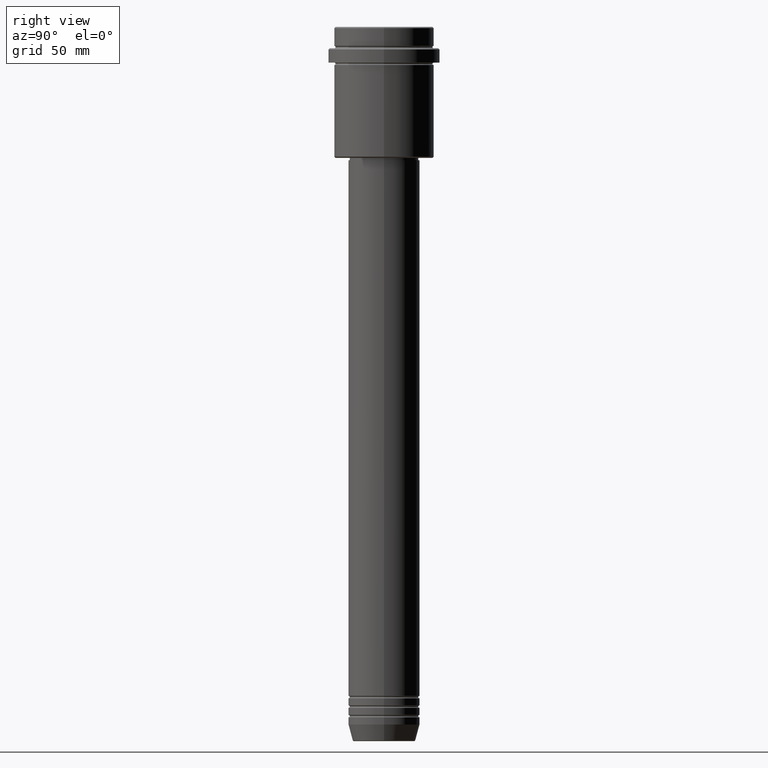
[diagram: clean part render]
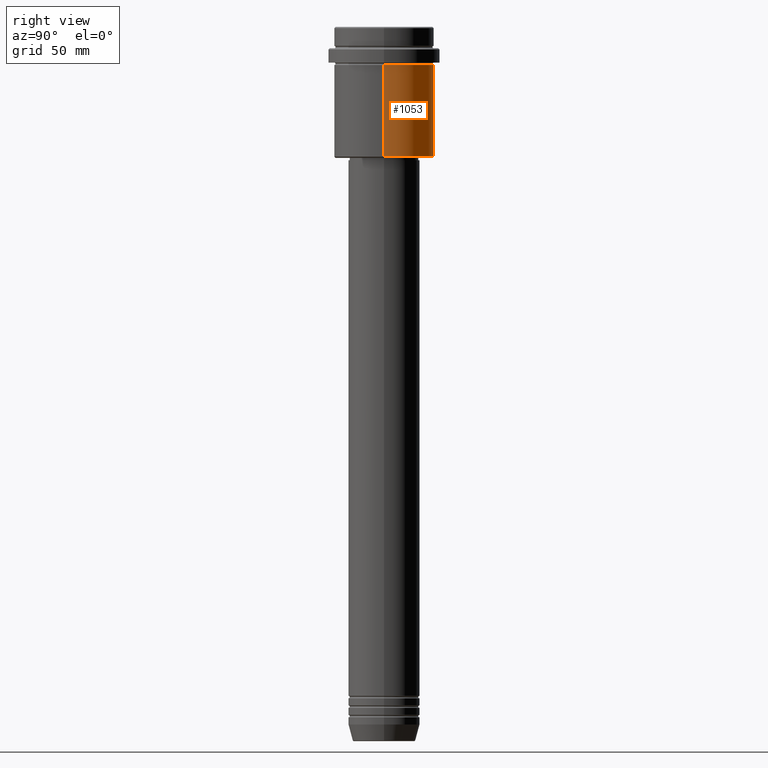
[diagram: same view with one face highlighted and labeled with its STEP entity id]
A machine part, right view. The second image highlights one B-rep face of the part: STEP entity #1053.
In plain terms, the highlighted cylindrical surface (partial cylindrical patch) has radius 21 mm, axis along (-0, -0, 1).
Its self-contained STEP definition (entity closure, byte-faithful):
#57 = ORIENTED_EDGE ( 'NONE', *, *, #731, .T. ) ;
#101 = CARTESIAN_POINT ( 'NONE',  ( -21.00000000000000000, 2.571758278209441661E-15, 0.000000000000000000 ) ) ;
#105 = DIRECTION ( 'NONE',  ( -0.000000000000000000, -0.000000000000000000, 1.000000000000000000 ) ) ;
#112 = AXIS2_PLACEMENT_3D ( 'NONE', #1144, #1097, #554 ) ;
#127 = EDGE_CURVE ( 'NONE', #585, #1347, #476, .T. ) ;
#159 = VECTOR ( 'NONE', #105, 1000.000000000000000 ) ;
#167 = DIRECTION ( 'NONE',  ( -0.000000000000000000, -0.000000000000000000, 1.000000000000000000 ) ) ;
#284 = CYLINDRICAL_SURFACE ( 'NONE', #1414, 21.00000000000000000 ) ;
#311 = LINE ( 'NONE', #101, #542 ) ;
#328 = DIRECTION ( 'NONE',  ( -0.000000000000000000, -0.000000000000000000, 1.000000000000000000 ) ) ;
#396 = EDGE_LOOP ( 'NONE', ( #1322, #57, #1025, #917 ) ) ;
#476 = CIRCLE ( 'NONE', #112, 21.00000000000000000 ) ;
#542 = VECTOR ( 'NONE', #832, 1000.000000000000000 ) ;
#554 = DIRECTION ( 'NONE',  ( -1.000000000000000000, 0.000000000000000000, 0.000000000000000000 ) ) ;
#582 = FACE_OUTER_BOUND ( 'NONE', #396, .T. ) ;
#585 = VERTEX_POINT ( 'NONE', #706 ) ;
#634 = CIRCLE ( 'NONE', #768, 21.00000000000000000 ) ;
#705 = CARTESIAN_POINT ( 'NONE',  ( 0.000000000000000000, 0.000000000000000000, 0.000000000000000000 ) ) ;
#706 = CARTESIAN_POINT ( 'NONE',  ( 21.00000000000000000, 0.000000000000000000, -54.49999999999992184 ) ) ;
#731 = EDGE_CURVE ( 'NONE', #1347, #1215, #311, .T. ) ;
#756 = CARTESIAN_POINT ( 'NONE',  ( -21.00000000000000000, 2.571758278209441661E-15, -54.49999999999992184 ) ) ;
#767 = CARTESIAN_POINT ( 'NONE',  ( 21.00000000000000000, 0.000000000000000000, 0.000000000000000000 ) ) ;
#768 = AXIS2_PLACEMENT_3D ( 'NONE', #1222, #328, #873 ) ;
#832 = DIRECTION ( 'NONE',  ( -0.000000000000000000, -0.000000000000000000, 1.000000000000000000 ) ) ;
#849 = CARTESIAN_POINT ( 'NONE',  ( -21.00000000000000000, 2.571758278209441661E-15, -16.00000000000000355 ) ) ;
#854 = EDGE_CURVE ( 'NONE', #585, #1269, #870, .T. ) ;
#870 = LINE ( 'NONE', #767, #159 ) ;
#873 = DIRECTION ( 'NONE',  ( 1.000000000000000000, 0.000000000000000000, 0.000000000000000000 ) ) ;
#917 = ORIENTED_EDGE ( 'NONE', *, *, #854, .F. ) ;
#994 = CARTESIAN_POINT ( 'NONE',  ( 21.00000000000000000, 0.000000000000000000, -16.00000000000000355 ) ) ;
#1025 = ORIENTED_EDGE ( 'NONE', *, *, #1302, .F. ) ;
#1053 = ADVANCED_FACE ( 'NONE', ( #582 ), #284, .T. ) ;
#1097 = DIRECTION ( 'NONE',  ( -0.000000000000000000, -0.000000000000000000, 1.000000000000000000 ) ) ;
#1144 = CARTESIAN_POINT ( 'NONE',  ( 0.000000000000000000, 0.000000000000000000, -54.49999999999992184 ) ) ;
#1148 = DIRECTION ( 'NONE',  ( 1.000000000000000000, 0.000000000000000000, 0.000000000000000000 ) ) ;
#1215 = VERTEX_POINT ( 'NONE', #849 ) ;
#1222 = CARTESIAN_POINT ( 'NONE',  ( 0.000000000000000000, 0.000000000000000000, -16.00000000000000355 ) ) ;
#1269 = VERTEX_POINT ( 'NONE', #994 ) ;
#1302 = EDGE_CURVE ( 'NONE', #1269, #1215, #634, .T. ) ;
#1322 = ORIENTED_EDGE ( 'NONE', *, *, #127, .T. ) ;
#1347 = VERTEX_POINT ( 'NONE', #756 ) ;
#1414 = AXIS2_PLACEMENT_3D ( 'NONE', #705, #167, #1148 ) ;